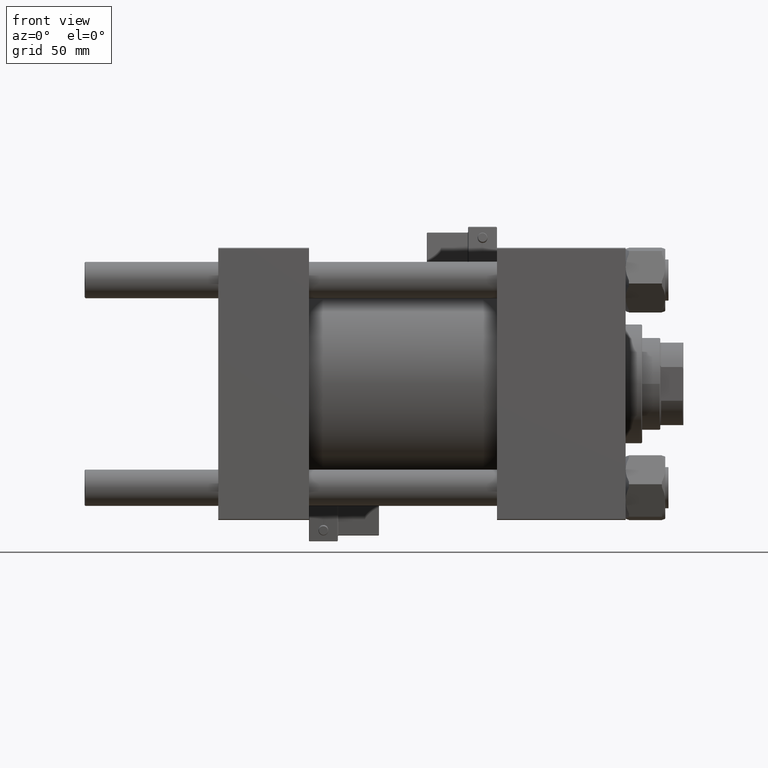
[diagram: clean part render]
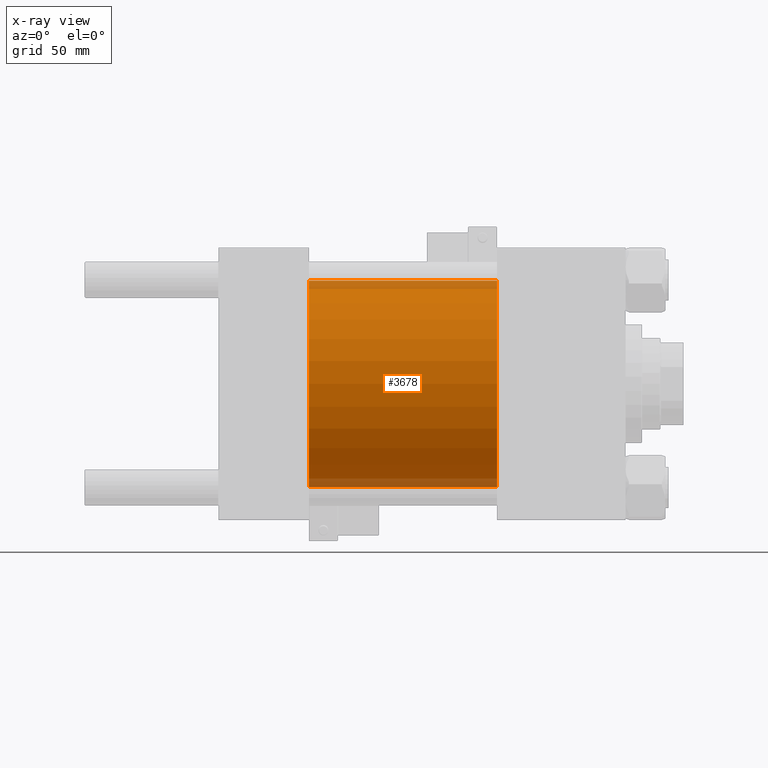
[diagram: x-ray — body ghosted, one internal face saturated and labeled with its STEP entity id]
A machine part, front view, then the same camera in x-ray: the body is ghosted and one INTERNAL B-rep face — a face not visible from any outside direction — is saturated and labeled: STEP entity #3678.
In plain terms, the highlighted cylindrical surface (partial cylindrical patch) has radius 62.5 mm, axis along (-1, -0, -0).
Its self-contained STEP definition (entity closure, byte-faithful):
#229 = CARTESIAN_POINT ( 'NONE',  ( 55.00000000000000000, 0.000000000000000000, 62.50000000000000000 ) ) ;
#1637 = DIRECTION ( 'NONE',  ( 1.000000000000000000, 0.000000000000000000, 0.000000000000000000 ) ) ;
#3610 = EDGE_CURVE ( 'NONE', #51520, #31445, #45820, .T. ) ;
#3678 = ADVANCED_FACE ( 'NONE', ( #39133 ), #47658, .F. ) ;
#6002 = ORIENTED_EDGE ( 'NONE', *, *, #46941, .T. ) ;
#6887 = CARTESIAN_POINT ( 'NONE',  ( 169.0000000000000000, 0.000000000000000000, 62.50000000000000000 ) ) ;
#6934 = DIRECTION ( 'NONE',  ( -1.000000000000000000, -0.000000000000000000, -0.000000000000000000 ) ) ;
#9604 = CARTESIAN_POINT ( 'NONE',  ( 169.0000000000000000, 7.654042494670956226E-15, -62.50000000000000000 ) ) ;
#10019 = CARTESIAN_POINT ( 'NONE',  ( 55.00000000000000000, 7.654042494670956226E-15, -62.50000000000000000 ) ) ;
#10712 = ORIENTED_EDGE ( 'NONE', *, *, #36631, .F. ) ;
#12563 = LINE ( 'NONE', #44263, #26263 ) ;
#13118 = CIRCLE ( 'NONE', #20796, 62.50000000000000000 ) ;
#13595 = DIRECTION ( 'NONE',  ( 0.000000000000000000, 0.000000000000000000, -1.000000000000000000 ) ) ;
#13796 = VERTEX_POINT ( 'NONE', #229 ) ;
#15505 = AXIS2_PLACEMENT_3D ( 'NONE', #22636, #6934, #30874 ) ;
#18201 = ORIENTED_EDGE ( 'NONE', *, *, #3610, .T. ) ;
#18824 = AXIS2_PLACEMENT_3D ( 'NONE', #33023, #1637, #13595 ) ;
#20796 = AXIS2_PLACEMENT_3D ( 'NONE', #29418, #41400, #37665 ) ;
#22636 = CARTESIAN_POINT ( 'NONE',  ( 169.0000000000000000, 0.000000000000000000, 0.000000000000000000 ) ) ;
#22860 = EDGE_LOOP ( 'NONE', ( #6002, #18201, #10712, #44854 ) ) ;
#24361 = EDGE_CURVE ( 'NONE', #24869, #13796, #12563, .T. ) ;
#24869 = VERTEX_POINT ( 'NONE', #6887 ) ;
#26263 = VECTOR ( 'NONE', #36007, 1000.000000000000000 ) ;
#26466 = CIRCLE ( 'NONE', #18824, 62.50000000000000000 ) ;
#29418 = CARTESIAN_POINT ( 'NONE',  ( 169.0000000000000000, 0.000000000000000000, 0.000000000000000000 ) ) ;
#30874 = DIRECTION ( 'NONE',  ( 0.000000000000000000, 0.000000000000000000, 1.000000000000000000 ) ) ;
#31445 = VERTEX_POINT ( 'NONE', #10019 ) ;
#33023 = CARTESIAN_POINT ( 'NONE',  ( 55.00000000000000000, 0.000000000000000000, 0.000000000000000000 ) ) ;
#36007 = DIRECTION ( 'NONE',  ( -1.000000000000000000, -0.000000000000000000, -0.000000000000000000 ) ) ;
#36631 = EDGE_CURVE ( 'NONE', #13796, #31445, #26466, .T. ) ;
#37665 = DIRECTION ( 'NONE',  ( 0.000000000000000000, 0.000000000000000000, -1.000000000000000000 ) ) ;
#38832 = CARTESIAN_POINT ( 'NONE',  ( 169.0000000000000000, 7.654042494670956226E-15, -62.50000000000000000 ) ) ;
#39133 = FACE_OUTER_BOUND ( 'NONE', #22860, .T. ) ;
#41400 = DIRECTION ( 'NONE',  ( 1.000000000000000000, 0.000000000000000000, 0.000000000000000000 ) ) ;
#41815 = DIRECTION ( 'NONE',  ( -1.000000000000000000, -0.000000000000000000, -0.000000000000000000 ) ) ;
#44263 = CARTESIAN_POINT ( 'NONE',  ( 169.0000000000000000, 0.000000000000000000, 62.50000000000000000 ) ) ;
#44854 = ORIENTED_EDGE ( 'NONE', *, *, #24361, .F. ) ;
#45820 = LINE ( 'NONE', #9604, #47109 ) ;
#46941 = EDGE_CURVE ( 'NONE', #24869, #51520, #13118, .T. ) ;
#47109 = VECTOR ( 'NONE', #41815, 1000.000000000000000 ) ;
#47658 = CYLINDRICAL_SURFACE ( 'NONE', #15505, 62.50000000000000000 ) ;
#51520 = VERTEX_POINT ( 'NONE', #38832 ) ;